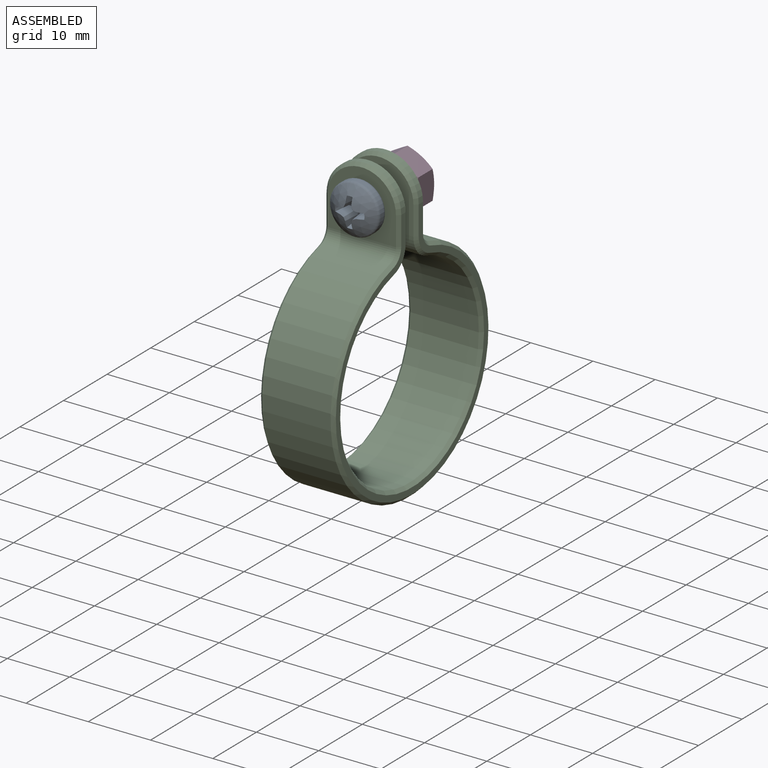
[diagram: assembled view]
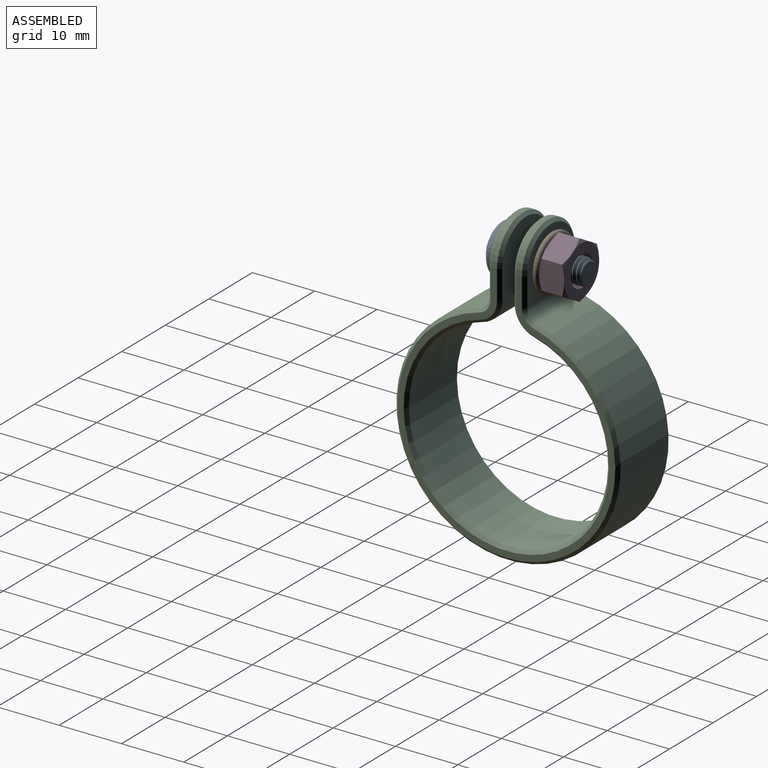
[diagram: assembled view, second angle]
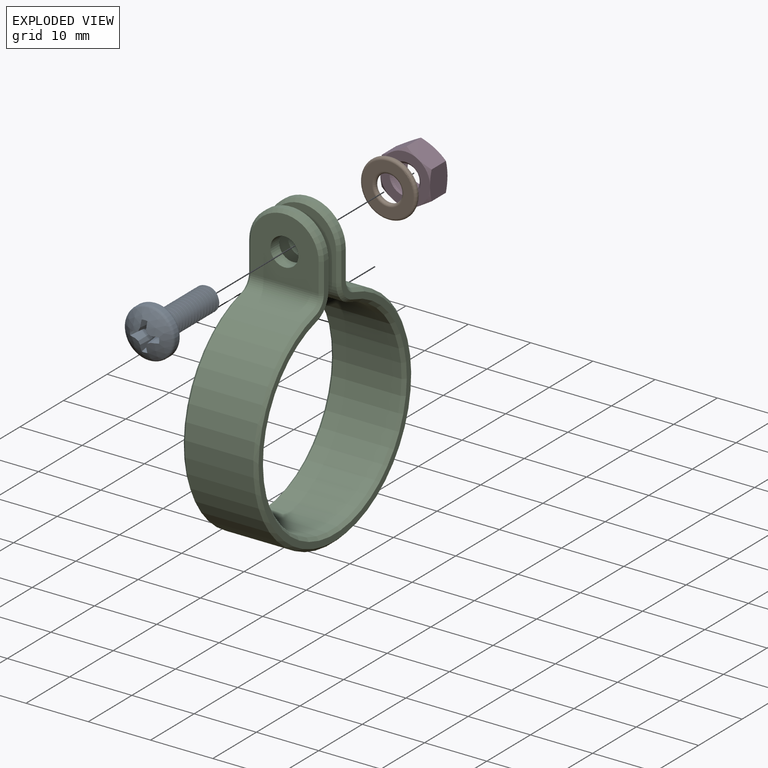
[diagram: exploded view]
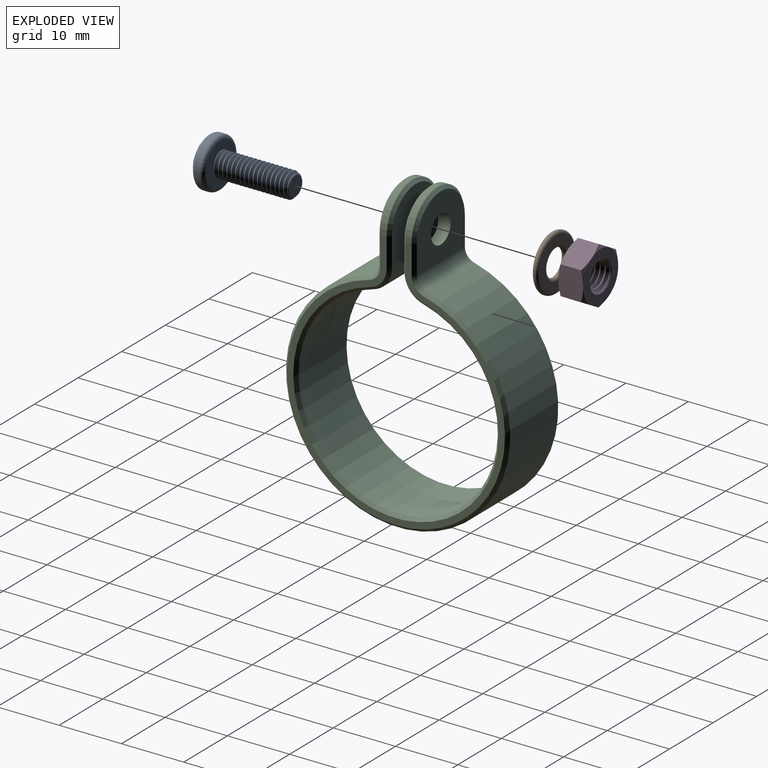
[diagram: exploded view, second angle]
ASSEMBLY  parts=4 mates=3
PART A: 33 faces, bbox 8.9x8.9x15.7 mm
  f0: cone r=2.5mm half-angle=15deg, axis (0,0,1), area 1.7mm2, adj f3,f19,f23,f24
  f1: cone r=2.5mm half-angle=15deg, axis (0,0,1), area 1.7mm2, adj f3,f18,f19,f20
  f2: torus R=3.42mm, axis (0,0,1), area 12.2mm2, adj f3,f4
  f3: sphere r=5.74mm, area 43mm2, adj f0,f1,f2,f14,f15,f16,f17,f18
  f4: cylinder r=4mm len=8mm, axis (0,0,-1), area 19.7mm2, adj f2,f5
  f5: torus R=3.42mm, axis (0,0,1), area 21.9mm2, adj f4,f9
  f6: cone r=4.72mm half-angle=45deg, axis (0,0,1), area 3.5mm2, adj f8,f10,f11,f12,f13
  f7: cylinder r=1.55mm len=12mm, axis (0,0,1), area 14.6mm2, adj f9,f10,f11,f12,f13
  f8: cylinder r=2mm len=11.55mm, axis (0,0,1), area 18.1mm2, adj f6,f9,f10,f11
  f9: plane 7.1x7.1mm, normal (0,0,-1), area 26.7mm2, adj f5,f7,f8,f10,f11
  f10: bspline ~12.28x4.62mm, area 97.9mm2, adj f6,f7,f8,f9,f12
  f11: bspline ~12.26x3.98mm, area 98.4mm2, adj f6,f7,f8,f9
  f12: bspline ~3.51x2.03mm, area 0.5mm2, adj f6,f7,f10
  f13: plane 3.09x3.09mm, normal (0,0,-1), area 7.5mm2, adj f6,f7
  f14: cone r=2.5mm half-angle=15deg, axis (0,0,1), area 1.7mm2, adj f3,f15,f19,f32
  f15: plane 2.77x1.28mm, normal (-1,0,0.09), area 2mm2, adj f3,f14,f16,f19
  f16: plane 2.67x0.71mm, normal (-0.92,-0.38,0.09), area 1.7mm2, adj f3,f15,f17,f19
  f17: plane 2.67x0.71mm, normal (-0.38,-0.92,0.09), area 1.7mm2, adj f3,f16,f18,f19
  f18: plane 2.77x1.28mm, normal (0,-1,0.09), area 2mm2, adj f1,f3,f17,f19
  f19: plane 3.52x3.52mm, normal (0,0,1), area 4.4mm2, adj f0,f1,f14,f15,f16,f17,f18,f20
  f20: plane 2.77x1.28mm, normal (0,1,0.09), area 2mm2, adj f1,f3,f19,f21
  f21: plane 2.67x0.71mm, normal (-0.38,0.92,0.09), area 1.7mm2, adj f3,f19,f20,f22
  f22: plane 2.67x0.71mm, normal (-0.92,0.38,0.09), area 1.7mm2, adj f3,f19,f21,f23
  f23: plane 2.77x1.28mm, normal (-1,0,0.09), area 2mm2, adj f0,f3,f19,f22
  f24: plane 2.77x1.28mm, normal (1,0,0.09), area 2mm2, adj f0,f3,f19,f25
  f25: plane 2.67x0.71mm, normal (0.92,0.38,0.09), area 1.7mm2, adj f3,f19,f24,f26
  f26: plane 2.67x0.71mm, normal (0.38,0.92,0.09), area 1.7mm2, adj f3,f19,f25,f27
  f27: plane 2.77x1.28mm, normal (0,1,0.09), area 2mm2, adj f3,f19,f26,f28
  f28: cone r=2.5mm half-angle=15deg, axis (0,0,1), area 1.7mm2, adj f3,f19,f27,f29
  f29: plane 2.77x1.28mm, normal (0,-1,0.09), area 2mm2, adj f3,f19,f28,f30
  f30: plane 2.67x0.71mm, normal (0.38,-0.92,0.09), area 1.7mm2, adj f3,f19,f29,f31
  f31: plane 2.67x0.71mm, normal (0.92,-0.38,0.09), area 1.7mm2, adj f3,f19,f30,f32
  f32: plane 2.77x1.28mm, normal (1,0,0.09), area 2mm2, adj f3,f14,f19,f31
PART B: 8 faces, bbox 9.7x9.7x0.9 mm
  f0: cylinder r=2.15mm len=4.3mm, axis (0,0,-1), area 1.4mm2, adj f4,f7
  f1: cylinder r=4.5mm len=9mm, axis (0,0,-1), area 2.8mm2, adj f5,f6
  f2: plane 8.2x8.2mm, normal (0,0,1), area 32.4mm2, adj f5,f7
  f3: plane 8.2x8.2mm, normal (0,0,-1), area 32.4mm2, adj f4,f6
  f4: torus R=2.55mm, axis (0,0,1), area 9.1mm2, adj f0,f3
  f5: torus R=4.1mm, axis (0,0,1), area 17.2mm2, adj f1,f2
  f6: torus R=4.1mm, axis (0,0,1), area 17.2mm2, adj f1,f3
  f7: torus R=2.55mm, axis (0,0,1), area 9.1mm2, adj f0,f2
PART C: 40 faces, bbox 12x36x48 mm
  f0: cylinder r=16mm len=32mm, axis (-1,0,0), area 1016.9mm2, adj f10,f11,f20,f23
  f1: plane 11x10.14mm, normal (0,1,0), area 82.6mm2, adj f10,f15,f24,f26,f27
  f2: plane 11x10.14mm, normal (0,-1,0), area 82.6mm2, adj f8,f15,f35,f37,f39
  f3: cylinder r=18mm len=36mm, axis (-1,0,0), area 1144mm2, adj f8,f9,f31,f36
  f4: plane 11x10.14mm, normal (0,1,0), area 82.6mm2, adj f9,f14,f28,f30,f32
  f5: plane 11x10.14mm, normal (0,-1,0), area 82.6mm2, adj f11,f14,f16,f17,f19
  f6: plane 41.5x35mm, normal (1,0,0), area 115.4mm2, adj f12,f13,f16,f18,f20,f22,f24,f28
  f7: plane 41.5x35mm, normal (-1,0,0), area 115.4mm2, adj f12,f13,f19,f21,f23,f25,f27,f32
  f8: cylinder r=2mm len=11mm, axis (-1,0,0), area 29mm2, adj f2,f3,f33,f38
  f9: cylinder r=2mm len=11mm, axis (-1,0,0), area 29mm2, adj f3,f4,f29,f34
  f10: cylinder r=4mm len=11mm, axis (-1,0,0), area 58mm2, adj f0,f1,f22,f25
  f11: cylinder r=4mm len=11mm, axis (-1,0,0), area 58mm2, adj f0,f5,f18,f21
  f12: cylinder r=6mm len=12mm, axis (0,1,0), area 18.8mm2, adj f6,f7,f17,f30
  f13: cylinder r=6mm len=12mm, axis (0,1,0), area 18.8mm2, adj f6,f7,f26,f37
  f14: cylinder r=2.25mm len=4.5mm, axis (0,1,0), area 28.3mm2, adj f4,f5
  f15: cylinder r=2.25mm len=4.5mm, axis (0,1,0), area 28.3mm2, adj f1,f2
  f16: plane 4.64x0.5mm, normal (0.71,-0.71,0), area 3.3mm2, adj f5,f6,f17,f18
  f17: cone r=5.5mm half-angle=45deg, axis (0,1,0), area 12.8mm2, adj f5,f12,f16,f19
  f18: cone r=3.5mm half-angle=45deg, axis (-1,0,0), area 3.5mm2, adj f6,f11,f16,f20
  f19: plane 4.64x0.5mm, normal (-0.71,-0.71,0), area 3.3mm2, adj f5,f7,f17,f21
  f20: cone r=16mm half-angle=45deg, axis (1,0,0), area 66.4mm2, adj f0,f6,f18,f22
  f21: cone r=3.5mm half-angle=45deg, axis (1,0,0), area 3.5mm2, adj f7,f11,f19,f23
  f22: cone r=3.5mm half-angle=45deg, axis (-1,0,0), area 3.5mm2, adj f6,f10,f20,f24
  f23: cone r=16.5mm half-angle=45deg, axis (-1,0,0), area 66.4mm2, adj f0,f7,f21,f25
  f24: plane 4.64x0.5mm, normal (0.71,0.71,0), area 3.3mm2, adj f1,f6,f22,f26
  f25: cone r=3.5mm half-angle=45deg, axis (1,0,0), area 3.5mm2, adj f7,f10,f23,f27
  f26: cone r=5.5mm half-angle=45deg, axis (0,-1,0), area 12.8mm2, adj f1,f13,f24,f27
  f27: plane 4.64x0.5mm, normal (-0.71,0.71,0), area 3.3mm2, adj f1,f7,f25,f26
  f28: plane 4.64x0.5mm, normal (0.71,0.71,0), area 3.3mm2, adj f4,f6,f29,f30
  f29: cone r=2.5mm half-angle=45deg, axis (1,0,0), area 2.1mm2, adj f6,f9,f28,f31
  f30: cone r=5.5mm half-angle=45deg, axis (0,-1,0), area 12.8mm2, adj f4,f12,f28,f32
  f31: cone r=17.5mm half-angle=45deg, axis (-1,0,0), area 72.5mm2, adj f3,f6,f29,f33
  f32: plane 4.64x0.5mm, normal (-0.71,0.71,0), area 3.3mm2, adj f4,f7,f30,f34
  f33: cone r=2.5mm half-angle=45deg, axis (1,0,0), area 2.1mm2, adj f6,f8,f31,f35
  f34: cone r=2.5mm half-angle=45deg, axis (-1,0,0), area 2.1mm2, adj f7,f9,f32,f36
  f35: plane 4.64x0.5mm, normal (0.71,-0.71,0), area 3.3mm2, adj f2,f6,f33,f37
  f36: cone r=18mm half-angle=45deg, axis (1,0,0), area 72.5mm2, adj f3,f7,f34,f38
  f37: cone r=5.5mm half-angle=45deg, axis (0,1,0), area 12.8mm2, adj f2,f13,f35,f39
  f38: cone r=2.5mm half-angle=45deg, axis (-1,0,0), area 2.1mm2, adj f7,f8,f36,f39
  f39: plane 4.64x0.5mm, normal (-0.71,-0.71,0), area 3.3mm2, adj f2,f7,f37,f38
PART D: 27 faces, bbox 9.6x9.6x4.7 mm
  f0: cylinder r=2.5mm len=5mm, axis (0,0,-1), area 8.7mm2, adj f2,f10,f11,f12,f13,f14
  f1: cylinder r=1.98mm len=3.96mm, axis (0,0,1), area 4.6mm2, adj f2,f3,f13,f14
  f2: cone r=2.5mm half-angle=45deg, axis (0,0,-1), area 5.3mm2, adj f0,f1,f11,f13,f14
  f3: cone r=2.5mm half-angle=45deg, axis (0,0,1), area 4.6mm2, adj f1,f10,f12,f13,f14
  f4: plane 4.38x4.38mm, normal (-0.5,0.87,0), area 17.3mm2, adj f5,f9,f18,f19,f22,f23
  f5: plane 5x4.38mm, normal (-1,0,0), area 17.3mm2, adj f4,f6,f17,f18,f23,f24
  f6: plane 4.38x4.38mm, normal (-0.5,-0.87,0), area 17.3mm2, adj f5,f7,f16,f17,f24,f25
  f7: plane 4.38x4.38mm, normal (0.5,-0.87,0), area 17.3mm2, adj f6,f8,f15,f16,f25,f26
  f8: plane 5x4.38mm, normal (1,0,0), area 17.3mm2, adj f7,f9,f15,f20,f21,f26
  f9: plane 4.38x4.38mm, normal (0.5,0.87,0), area 17.3mm2, adj f4,f8,f19,f20,f21,f22
  f10: plane 8x8mm, normal (0,0,1), area 30.6mm2, adj f0,f3,f15,f16,f17,f18,f19,f20
  f11: plane 8x8mm, normal (0,0,-1), area 30.6mm2, adj f0,f2,f21,f22,f23,f24,f25,f26
  f12: plane 0.3x0.19mm, normal (1,0,0), area 0mm2, adj f0,f3,f14
  f13: bspline ~5x5mm, area 36.4mm2, adj f0,f1,f2,f3
  f14: bspline ~5x5mm, area 36.4mm2, adj f0,f1,f2,f3,f12
  f15: cone r=4mm half-angle=60deg, axis (0,0,-1), area 1.6mm2, adj f7,f8,f10
  f16: cone r=4mm half-angle=60deg, axis (0,0,-1), area 1.6mm2, adj f6,f7,f10
  f17: cone r=4mm half-angle=60deg, axis (0,0,-1), area 1.6mm2, adj f5,f6,f10
  f18: cone r=4mm half-angle=60deg, axis (0,0,-1), area 1.6mm2, adj f4,f5,f10
  f19: cone r=4mm half-angle=60deg, axis (0,0,-1), area 1.6mm2, adj f4,f9,f10
  f20: cone r=4mm half-angle=60deg, axis (0,0,-1), area 1.6mm2, adj f8,f9,f10
  f21: cone r=4mm half-angle=60deg, axis (0,0,1), area 1.6mm2, adj f8,f9,f11
  f22: cone r=4mm half-angle=60deg, axis (0,0,1), area 1.6mm2, adj f4,f9,f11
  f23: cone r=4mm half-angle=60deg, axis (0,0,1), area 1.6mm2, adj f4,f5,f11
  f24: cone r=4mm half-angle=60deg, axis (0,0,1), area 1.6mm2, adj f5,f6,f11
  f25: cone r=4mm half-angle=60deg, axis (0,0,1), area 1.6mm2, adj f6,f7,f11
  f26: cone r=4mm half-angle=60deg, axis (0,0,1), area 1.6mm2, adj f7,f8,f11
PLACE A rot(axis=(1,0,0),90deg) t=(0,9,24)mm
PLACE B rot(axis=(1,0,0),90deg) t=(0,3.9,24)mm
PLACE C at identity
PLACE D rot(axis=(1,0,0),90deg) t=(0,5.9,24)mm
MATE revolute A.f28 <-> C.f12  axis (0,1,0) through (0,-3,24)mm
MATE revolute D.f0 <-> B.f0  axis (0,-1,0) through (0,3.9,24)mm
MATE revolute B.f0 <-> C.f12  axis (0,-1,0) through (0,3,24)mm
